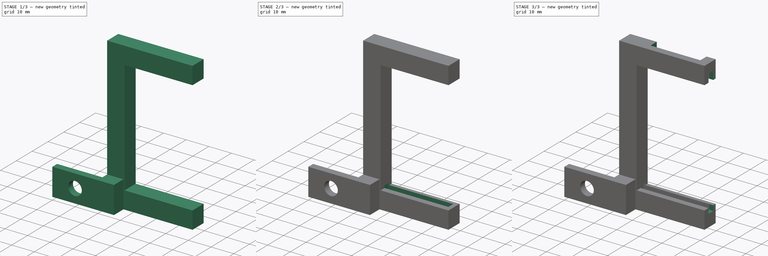
[diagram: build sequence overview — one tinted view per stage of 3, left to right]
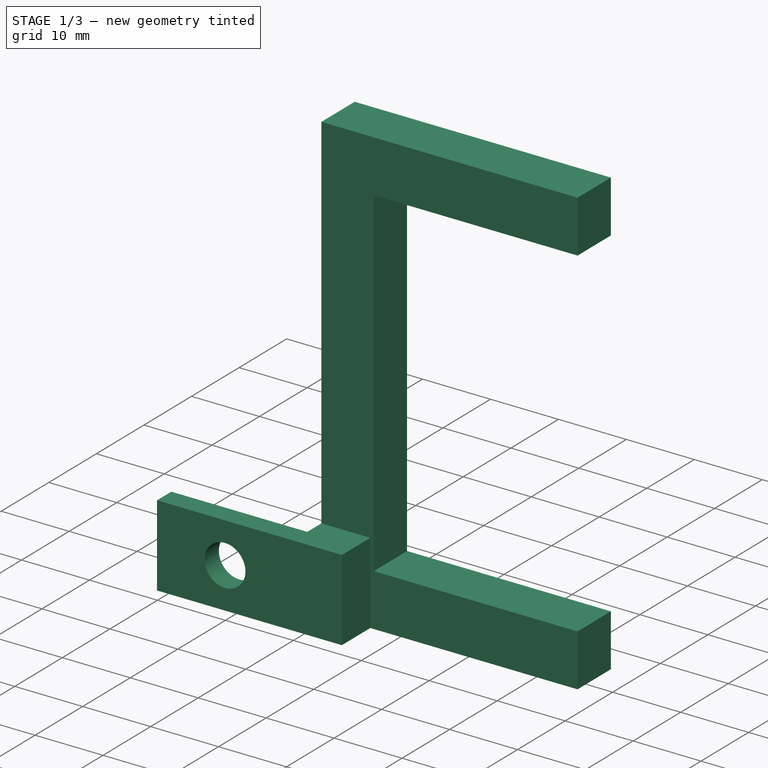
[diagram: stage 1 of 3 — iso view after this stage's code; geometry added in this stage tinted green]
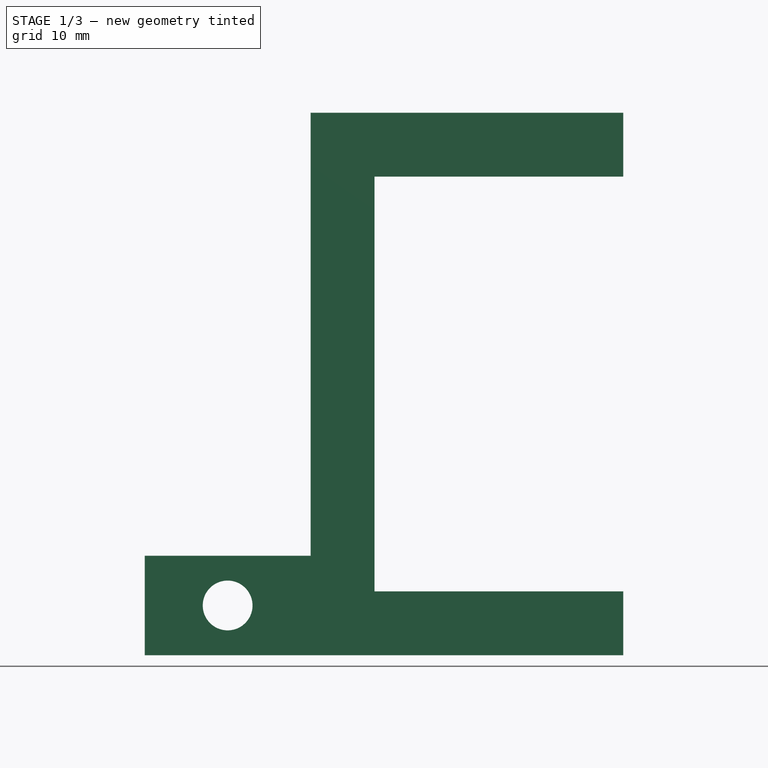
[diagram: stage 1 of 3 — front view after this stage's code; geometry added in this stage tinted green]
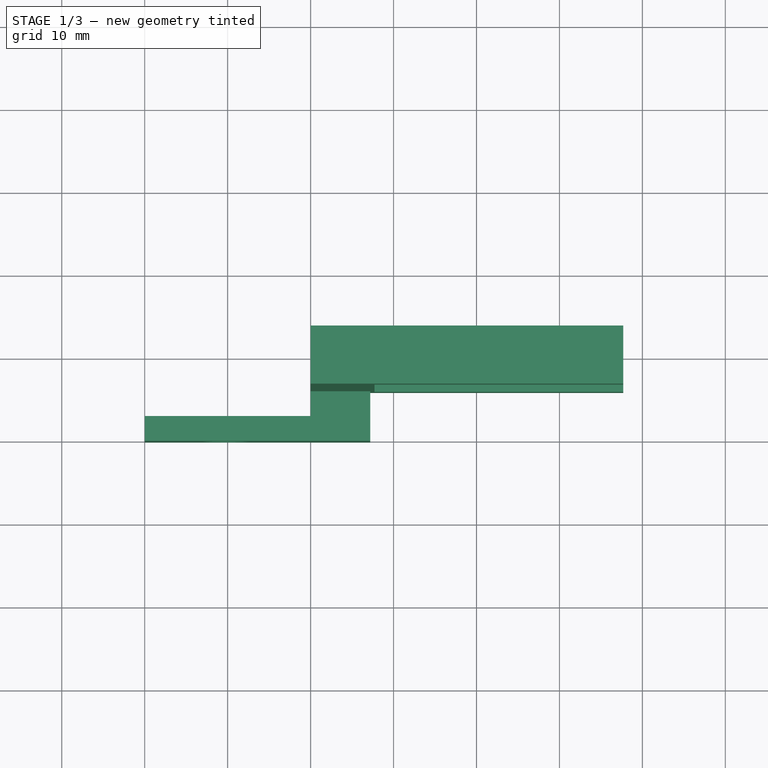
[diagram: stage 1 of 3 — top view after this stage's code; geometry added in this stage tinted green]
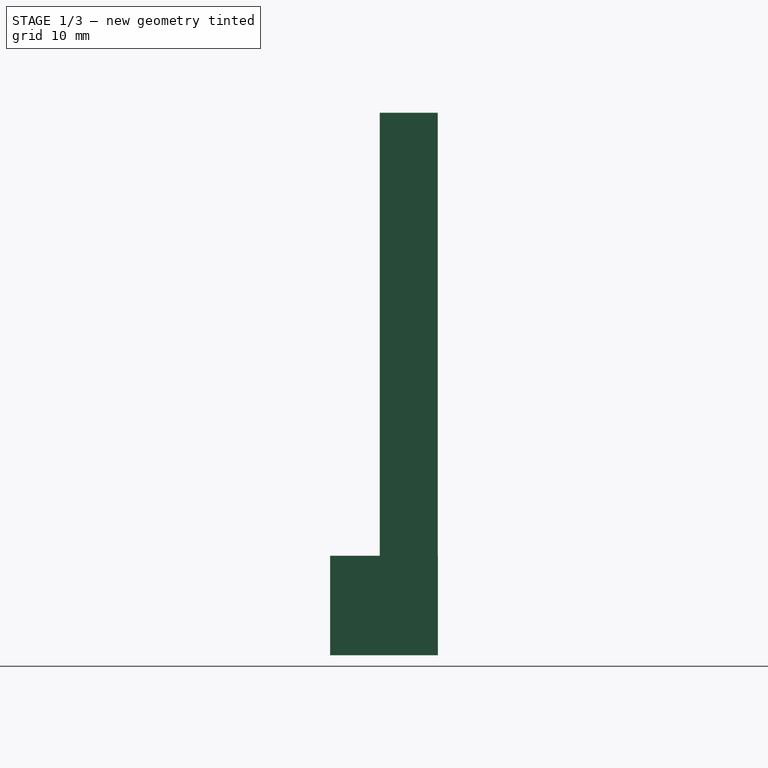
[diagram: stage 1 of 3 — right view after this stage's code; geometry added in this stage tinted green]
FCSTD DOCUMENT  (FreeCAD 1.0R39109 (Git))
Label: SupportMatrix2
License: All rights reserved
LicenseURL: http://en.wikipedia.org/wiki/All_rights_reserved
objects: Sketcher::SketchObject×8, PartDesign::Pocket×5, PartDesign::Pad×2, PartDesign::Hole×1, PartDesign::Body×1
note: 41 computed .brp shape members not serialized (recipe doc carries the construction recipe); baked Part::Feature solids carry a one-line shape summary decoded from their .brp

FEATURE [Sketcher::SketchObject] Sketch
  ArcFitTolerance = 0
  AttachmentSupport = -> [XY_Plane]
  FullyConstrained = false
  MakeInternals = false
  MapMode = 5
  sketch-geometry (6):
    g0: LineSegment StartX=-20 StartY=-10.081 StartZ=0 EndX=7.2 EndY=-10.081 EndZ=0
    g1: LineSegment StartX=7.2 StartY=-10.081 StartZ=0 EndX=7.2 EndY=2.91895 EndZ=0
    g2: LineSegment StartX=7.2 StartY=2.91895 StartZ=0 EndX=0 EndY=2.91895 EndZ=0
    g3: LineSegment StartX=0 StartY=2.91895 StartZ=0 EndX=0 EndY=-7.08105 EndZ=0
    g4: LineSegment StartX=0 StartY=-7.08105 StartZ=0 EndX=-20 EndY=-7.08105 EndZ=0
    g5: LineSegment StartX=-20 StartY=-7.08105 StartZ=0 EndX=-20 EndY=-10.081 EndZ=0
  constraints (17):
    c: Horizontal(g0)
    c: Coincident(g0,g1)
    c: Vertical(g1)
    c: Coincident(g1,g2)
    c: Horizontal(g2)
    c: Coincident(g2,g3)
    c: Vertical(g3)
    c: Coincident(g3,g4)
    c: Horizontal(g4)
    c: Coincident(g4,g5)
    c: Coincident(g5,g0)
    c: Vertical(g5)
    c: DistanceX(g4,g4) = 20
    c: DistanceY(g3,g3) = 10
    c: DistanceY(g5,g5) = 3
    c: DistanceX(g2,g2) = 7.2
    c: PointOnObject(g3,g-2)
FEATURE [PartDesign::Pad] Pad
  AllowMultiFace = false
  Direction = (0,0,1)
  Length = 12
  Length2 = 100
  Profile = -> Sketch
  Suppressed = false
  Type = 0
FEATURE [Sketcher::SketchObject] Sketch001
  ArcFitTolerance = 0
  AttachmentSupport = -> [Pad]
  ExternalGeometry = -> [Sketch]
  FullyConstrained = false
  MakeInternals = false
  MapMode = 5
  Placement = pos=(0,-10.081,0) rot=(1,0,0;1.5708rad)
  sketch-geometry (3):
    g0: Circle CenterX=-10 CenterY=6 CenterZ=0 NormalX=0 NormalY=0 NormalZ=1 AngleXU=0 Radius=1.75
    g1: LineSegment [constr] StartX=0 StartY=13.5632 StartZ=0 EndX=0 EndY=-1.69351 EndZ=0
    g2: LineSegment [constr] StartX=-14.5259 StartY=0 StartZ=0 EndX=-7.5133 EndY=0 EndZ=0
  constraints (2):
    c: Diameter(g0) = 3.5
    c: Distance(g0,g2) = 6
FEATURE [PartDesign::Hole] Hole
  AllowMultiFace = false
  BaseFeature = -> Pad
  CustomThreadClearance = 0
  Depth = 25
  DepthType = 1
  Diameter = 6
  DrillForDepth = false
  DrillPoint = 1
  DrillPointAngle = 118
  HoleCutCountersinkAngle = 90
  HoleCutCustomValues = false
  HoleCutDepth = 0
  HoleCutDiameter = 0
  HoleCutType = 0
  ModelThread = false
  Profile = -> Sketch001
  Suppressed = false
  Tapered = false
  TaperedAngle = 90
  ThreadClass = 0
  ThreadDepth = 23.5
  ThreadDepthType = 0
  ThreadDirection = 0
  ThreadFit = 0
  ThreadSize = 0
  ThreadType = 0
  Threaded = false
  UseCustomThreadClearance = false
FEATURE [Sketcher::SketchObject] Sketch002
  ArcFitTolerance = 0
  ExternalGeometry = -> [Sketch]
  FullyConstrained = false
  MakeInternals = false
  MapMode = 5
  Placement = pos=(0,2.9,0) rot=(1,0,0;1.5708rad)
  sketch-geometry (9):
    g0: LineSegment StartX=37.7 StartY=7.7 StartZ=0 EndX=37.7 EndY=0 EndZ=0
    g1: LineSegment StartX=37.7 StartY=0 StartZ=0 EndX=0 EndY=0 EndZ=0
    g2: LineSegment StartX=0 StartY=0 StartZ=0 EndX=0 EndY=11.9912 EndZ=0
    g3: LineSegment StartX=0 StartY=11.9912 StartZ=0 EndX=0 EndY=65.4 EndZ=0
    g4: LineSegment StartX=0 StartY=65.4 StartZ=0 EndX=37.7 EndY=65.4 EndZ=0
    g5: LineSegment StartX=7.7 StartY=57.7 StartZ=0 EndX=7.7 EndY=7.7 EndZ=0
    g6: LineSegment StartX=7.7 StartY=7.7 StartZ=0 EndX=37.7 EndY=7.7 EndZ=0
    g7: LineSegment StartX=37.7 StartY=65.4 StartZ=0 EndX=37.7 EndY=57.7 EndZ=0
    g8: LineSegment StartX=7.7 StartY=57.7 StartZ=0 EndX=37.7 EndY=57.7 EndZ=0
  constraints (25):
    c: Vertical(g3)
    c: Vertical(g2)
    c: Coincident(g3,g4)
    c: Horizontal(g4)
    c: Horizontal(g6)
    c: Vertical(g5)
    c: Coincident(g6,g5)
    c: Coincident(g0,g6)
    c: Vertical(g0)
    c: DistanceX(g6,g6) = 30
    c: DistanceY(g5,g5) = 50
    c: Coincident(g2,g-1)
    c: Coincident(g1,g0)
    c: DistanceY(g0,g0) = 7.7
    c: Horizontal(g1)
    c: Coincident(g1,g-1)
    c: Coincident(g4,g7)
    c: Vertical(g7)
    c: DistanceX(g1,g5) = 7.7
    c: DistanceX(g5,g7) = 30
    c: Coincident(g3,g2)
    c: Coincident(g8,g5)
    c: Coincident(g8,g7)
    c: Horizontal(g8)
    c: DistanceY(g7,g4) = 7.7
FEATURE [PartDesign::Pad] Pad001
  AllowMultiFace = false
  BaseFeature = -> Hole
  Direction = (0,-1,0)
  Length = 7
  Length2 = 100
  Profile = -> Sketch002
  Suppressed = false
  Type = 0
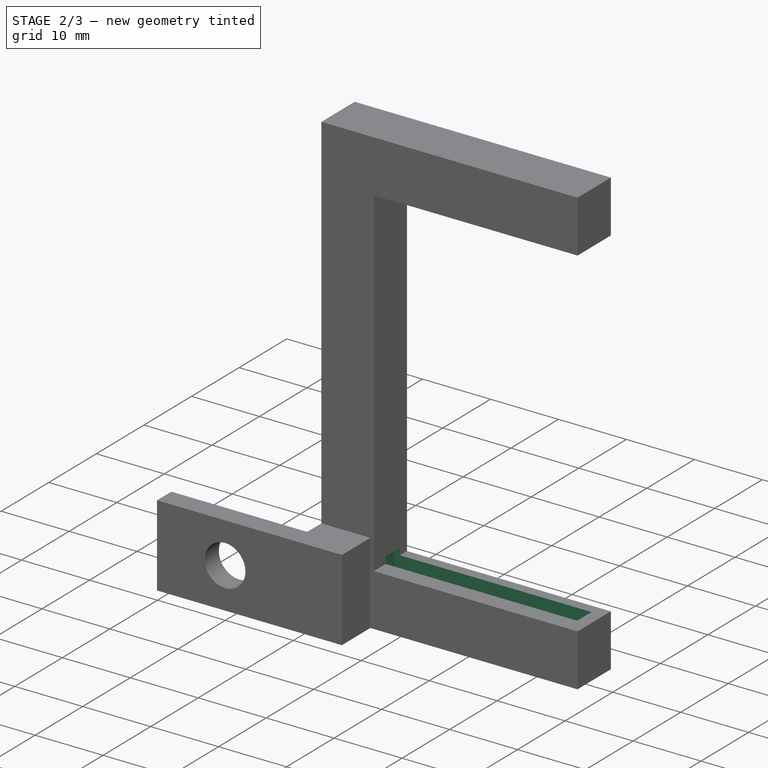
[diagram: stage 2 of 3 — iso view after this stage's code; geometry added in this stage tinted green]
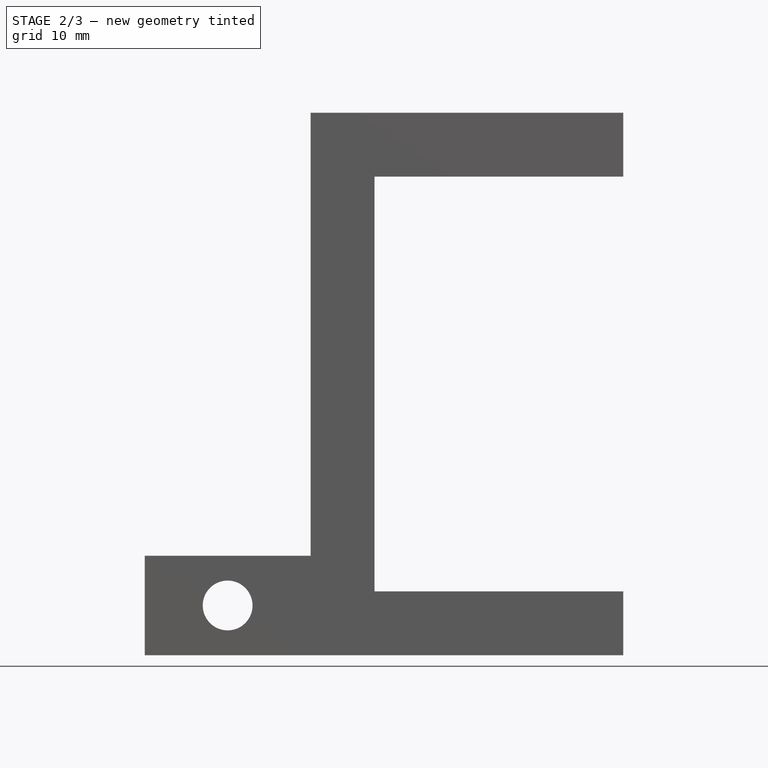
[diagram: stage 2 of 3 — front view after this stage's code; geometry added in this stage tinted green]
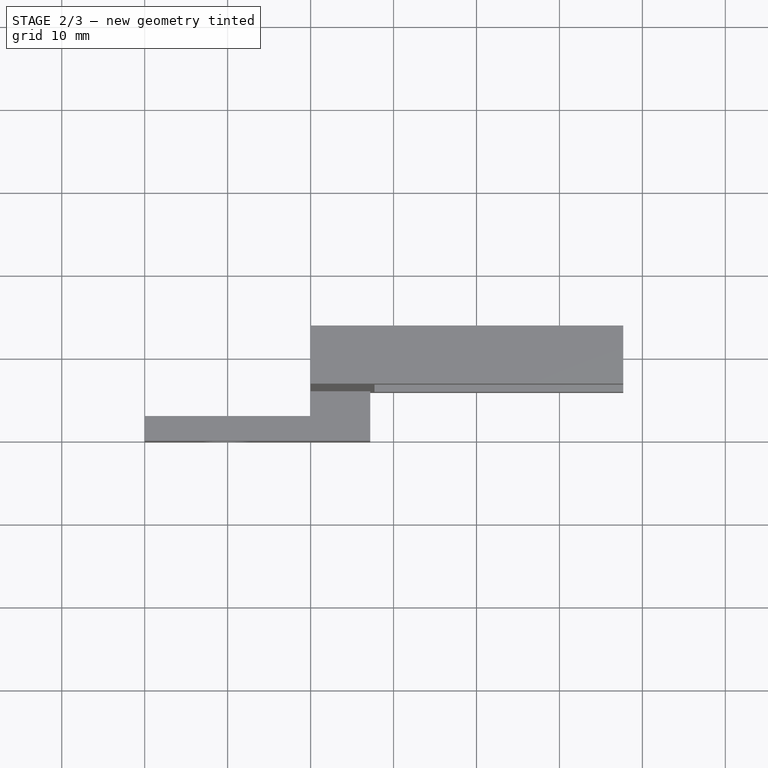
[diagram: stage 2 of 3 — top view after this stage's code; geometry added in this stage tinted green]
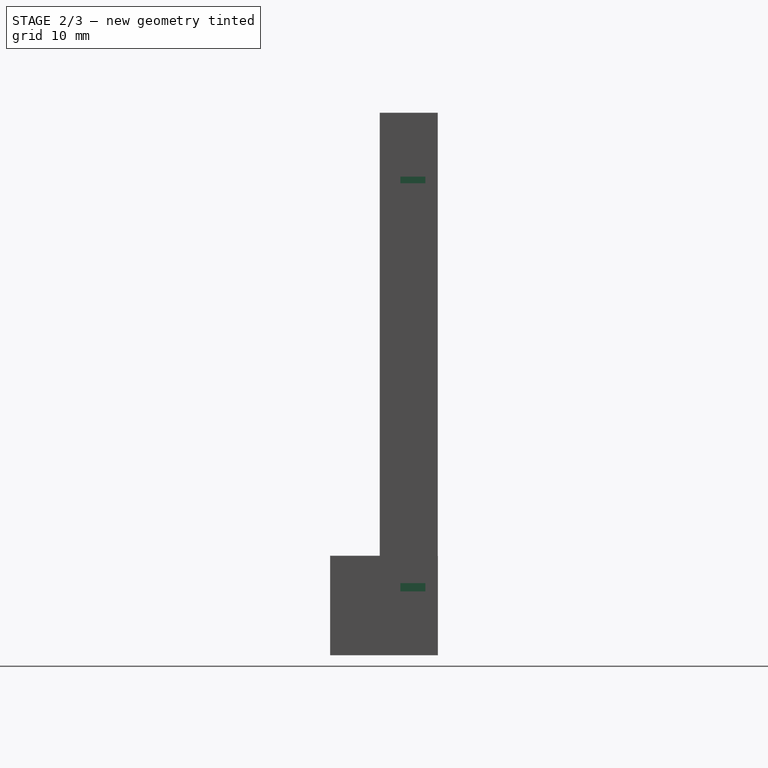
[diagram: stage 2 of 3 — right view after this stage's code; geometry added in this stage tinted green]
FEATURE [Sketcher::SketchObject] Sketch003
  ArcFitTolerance = 0
  AttachmentOffset = pos=(0,-6,55) rot=(0,0,1;0rad)
  AttachmentSupport = -> [Pad001]
  ExternalGeometry = -> [Sketch002,Pad001]
  FullyConstrained = false
  MakeInternals = false
  MapMode = 5
  Placement = pos=(0,6,2.7) rot=(1,0,0;3.14159rad)
  sketch-geometry (4):
    g0: LineSegment StartX=35.8997 StartY=4.6 StartZ=0 EndX=6.89969 EndY=4.6 EndZ=0
    g1: LineSegment StartX=6.89969 StartY=4.6 StartZ=0 EndX=6.89969 EndY=7.6 EndZ=0
    g2: LineSegment StartX=6.89969 StartY=7.6 StartZ=0 EndX=35.8997 EndY=7.6 EndZ=0
    g3: LineSegment StartX=35.8997 StartY=7.6 StartZ=0 EndX=35.8997 EndY=4.6 EndZ=0
  constraints (11):
    c: Coincident(g0,g1)
    c: Coincident(g1,g2)
    c: Coincident(g2,g3)
    c: Coincident(g3,g0)
    c: Horizontal(g0)
    c: Horizontal(g2)
    c: Vertical(g1)
    c: Vertical(g3)
    c: DistanceY(g1,g1) = 3
    c: DistanceY(g1,g-6) = 2.5
    c: DistanceX(g0,g0) = 29
FEATURE [PartDesign::Pocket] Pocket
  AllowMultiFace = false
  BaseFeature = -> Pad001
  Direction = (0,0,1)
  Length = 6
  Length2 = 100
  Profile = -> Sketch003
  ReferenceAxis = -> Sketch003 [N_Axis]
  Suppressed = false
  Type = 0
FEATURE [Sketcher::SketchObject] Sketch004
  ArcFitTolerance = 0
  AttachmentOffset = pos=(54,-65,-2.5) rot=(0,0,1;0rad)
  AttachmentSupport = -> [Pocket]
  ExternalGeometry = -> [Pocket,Sketch002]
  FullyConstrained = false
  MakeInternals = false
  MapMode = 5
  Placement = pos=(54,-65,62.9) rot=(0,0,1;0rad)
  sketch-geometry (4):
    g0: LineSegment StartX=-47.1214 StartY=66.4 StartZ=0 EndX=-18.1214 EndY=66.4 EndZ=0
    g1: LineSegment StartX=-18.1214 StartY=66.4 StartZ=0 EndX=-18.1214 EndY=63.4 EndZ=0
    g2: LineSegment StartX=-18.1214 StartY=63.4 StartZ=0 EndX=-47.1214 EndY=63.4 EndZ=0
    g3: LineSegment StartX=-47.1214 StartY=63.4 StartZ=0 EndX=-47.1214 EndY=66.4 EndZ=0
  constraints (11):
    c: Coincident(g0,g1)
    c: Coincident(g1,g2)
    c: Coincident(g2,g3)
    c: Coincident(g3,g0)
    c: Horizontal(g0)
    c: Horizontal(g2)
    c: Vertical(g1)
    c: Vertical(g3)
    c: DistanceY(g1,g1) = 3
    c: DistanceX(g2,g2) = 29
    c: DistanceY(g-6,g2) = 2.5
FEATURE [PartDesign::Pocket] Pocket001
  AllowMultiFace = false
  BaseFeature = -> Pocket
  Direction = (0,0,-1)
  Length = 6
  Length2 = 100
  Profile = -> Sketch004
  ReferenceAxis = -> Sketch004 [N_Axis]
  Suppressed = false
  Type = 0
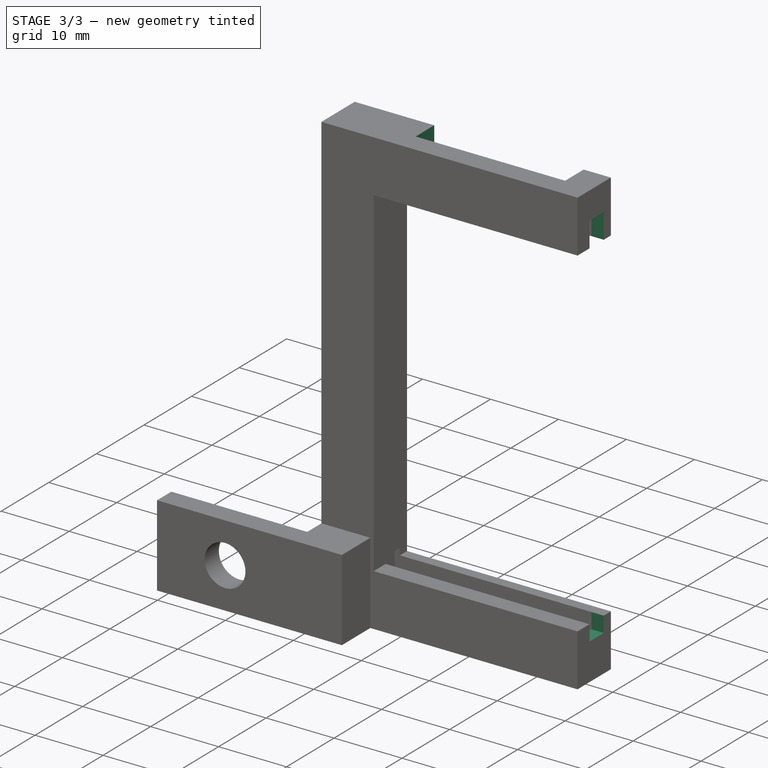
[diagram: stage 3 of 3 — iso view after this stage's code; geometry added in this stage tinted green]
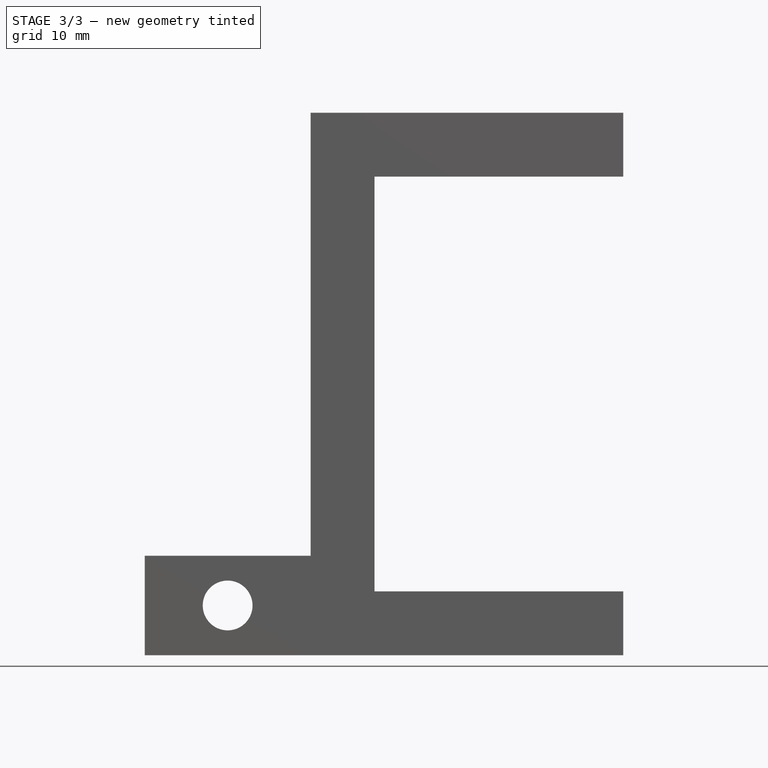
[diagram: stage 3 of 3 — front view after this stage's code; geometry added in this stage tinted green]
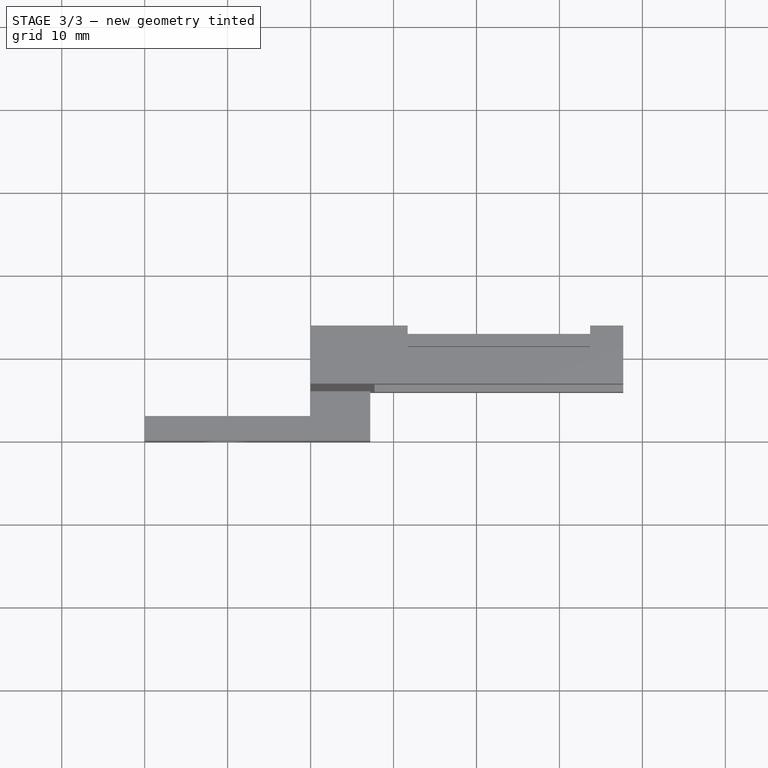
[diagram: stage 3 of 3 — top view after this stage's code; geometry added in this stage tinted green]
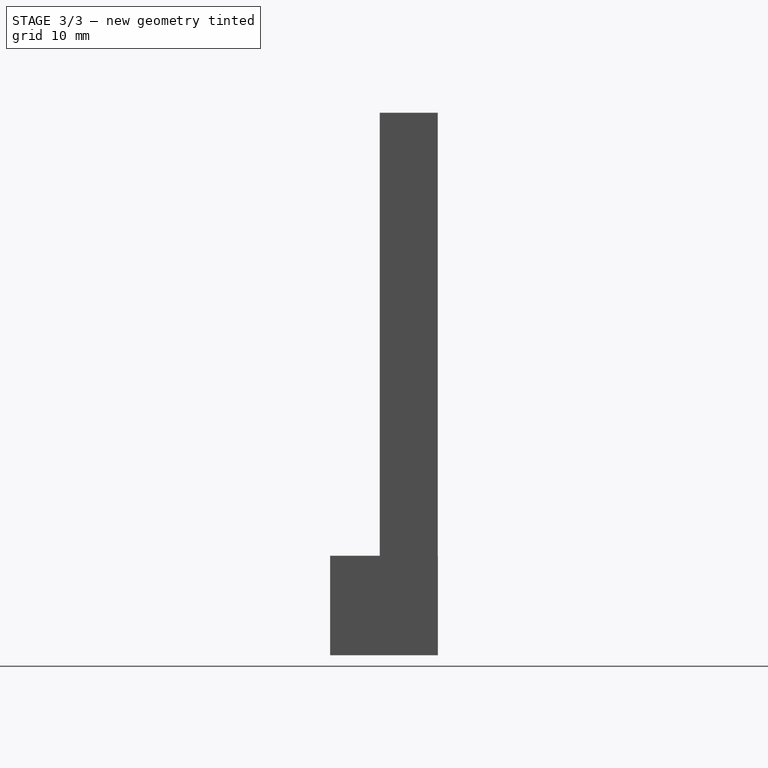
[diagram: stage 3 of 3 — right view after this stage's code; geometry added in this stage tinted green]
FEATURE [Sketcher::SketchObject] Sketch005
  ArcFitTolerance = 0
  AttachmentOffset = pos=(0,0,1) rot=(0,0,1;0rad)
  AttachmentSupport = -> [XZ_Plane]
  ExternalGeometry = -> [Pocket001]
  FullyConstrained = false
  MakeInternals = false
  MapMode = 5
  Placement = pos=(0,-1,-1.035e-13) rot=(1,0,0;1.5708rad)
  sketch-geometry (4):
    g0: LineSegment StartX=11.7 StartY=67.5756 StartZ=0 EndX=33.7 EndY=67.5756 EndZ=0
    g1: LineSegment StartX=33.7 StartY=67.5756 StartZ=0 EndX=33.7 EndY=56.6175 EndZ=0
    g2: LineSegment StartX=33.7 StartY=56.6175 StartZ=0 EndX=11.7 EndY=56.6175 EndZ=0
    g3: LineSegment StartX=11.7 StartY=56.6175 StartZ=0 EndX=11.7 EndY=67.5756 EndZ=0
  constraints (10):
    c: Coincident(g0,g1)
    c: Coincident(g1,g2)
    c: Coincident(g2,g3)
    c: Coincident(g3,g0)
    c: Horizontal(g0)
    c: Horizontal(g2)
    c: Vertical(g1)
    c: Vertical(g3)
    c: DistanceX(g-3,g2) = 4
    c: DistanceX(g1,g-4) = 4
FEATURE [PartDesign::Pocket] Pocket002
  BaseFeature = -> Pocket001
  Direction = (0,1,1.035e-13)
  Length = 6
  Length2 = 5
  Profile = -> Sketch005
  ReferenceAxis = -> Sketch005 [N_Axis]
  Suppressed = false
  Type = 0
FEATURE [Sketcher::SketchObject] Sketch006
  ArcFitTolerance = 1e-06
  AttachmentOffset = pos=(0,0,5.4) rot=(0,0,1;0rad)
  AttachmentSupport = -> [XY_Plane]
  ExternalGeometry = -> [Sketch004,Sketch002]
  FullyConstrained = false
  MakeInternals = false
  MapMode = 5
  Placement = pos=(0,0,5.4) rot=(0,0,1;0rad)
  sketch-geometry (4):
    g0: LineSegment StartX=37.7 StartY=1.4 StartZ=0 EndX=35.8786 EndY=1.4 EndZ=0
    g1: LineSegment StartX=35.8786 StartY=1.4 StartZ=0 EndX=35.8786 EndY=-1.6 EndZ=0
    g2: LineSegment StartX=35.8786 StartY=-1.6 StartZ=0 EndX=37.7 EndY=-1.6 EndZ=0
    g3: LineSegment StartX=37.7 StartY=-1.6 StartZ=0 EndX=37.7 EndY=1.4 EndZ=0
  constraints (10):
    c: Coincident(g0,g1)
    c: Coincident(g1,g2)
    c: Coincident(g2,g3)
    c: Coincident(g3,g0)
    c: Horizontal(g0)
    c: Horizontal(g2)
    c: Vertical(g1)
    c: Vertical(g3)
    c: Coincident(g0,g-3)
    c: Equal(g3,g-5)
FEATURE [PartDesign::Pocket] Pocket003
  BaseFeature = -> Pocket002
  Direction = (0,0,-1)
  Length = 5
  Length2 = 5
  Profile = -> Sketch006
  ReferenceAxis = -> Sketch006 [N_Axis]
  Reversed = true
  Suppressed = false
  Type = 0
FEATURE [Sketcher::SketchObject] Sketch007
  ArcFitTolerance = 1e-06
  AttachmentOffset = pos=(0,0,61.4) rot=(0,0,1;0rad)
  AttachmentSupport = -> [XY_Plane]
  ExternalGeometry = -> [Sketch006,Sketch004]
  FullyConstrained = true
  MakeInternals = false
  MapMode = 5
  Placement = pos=(0,0,61.4) rot=(0,0,1;0rad)
  sketch-geometry (4):
    g0: LineSegment StartX=35.8786 StartY=1.4 StartZ=0 EndX=35.8786 EndY=-1.6 EndZ=0
    g1: LineSegment StartX=35.8786 StartY=-1.6 StartZ=0 EndX=37.7 EndY=-1.6 EndZ=0
    g2: LineSegment StartX=37.7 StartY=-1.6 StartZ=0 EndX=37.7 EndY=1.4 EndZ=0
    g3: LineSegment StartX=37.7 StartY=1.4 StartZ=0 EndX=35.8786 EndY=1.4 EndZ=0
  constraints (9):
    c: Coincident(g0,g1)
    c: Coincident(g1,g2)
    c: Coincident(g2,g3)
    c: Coincident(g3,g0)
    c: Vertical(g0)
    c: Horizontal(g3)
    c: Coincident(g0,g-4)
    c: Coincident(g-3,g1)
    c: Coincident(g-3,g2)
FEATURE [PartDesign::Pocket] Pocket004
  BaseFeature = -> Pocket003
  Direction = (0,0,-1)
  Length = 5
  Length2 = 5
  Profile = -> Sketch007
  ReferenceAxis = -> Sketch007 [N_Axis]
  Suppressed = false
  Type = 0
FEATURE [PartDesign::Body] Body
  AllowCompound = false
  Group = -> [Sketch,Pad,Sketch001,Hole,Sketch002,Pad001,Sketch003,Pocket,Sketch004,Pocket001,Sketch005,Pocket002,Sketch006,Pocket003,Sketch007,Pocket004]
  Origin = -> Origin
  Tip = -> Pocket004
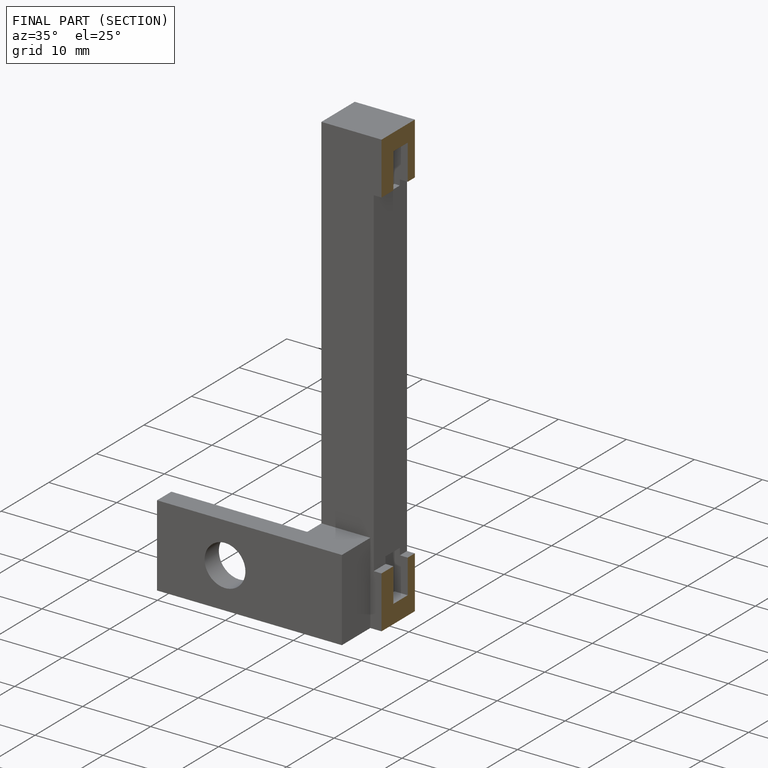
[diagram: finished part — half-section view (interior)]
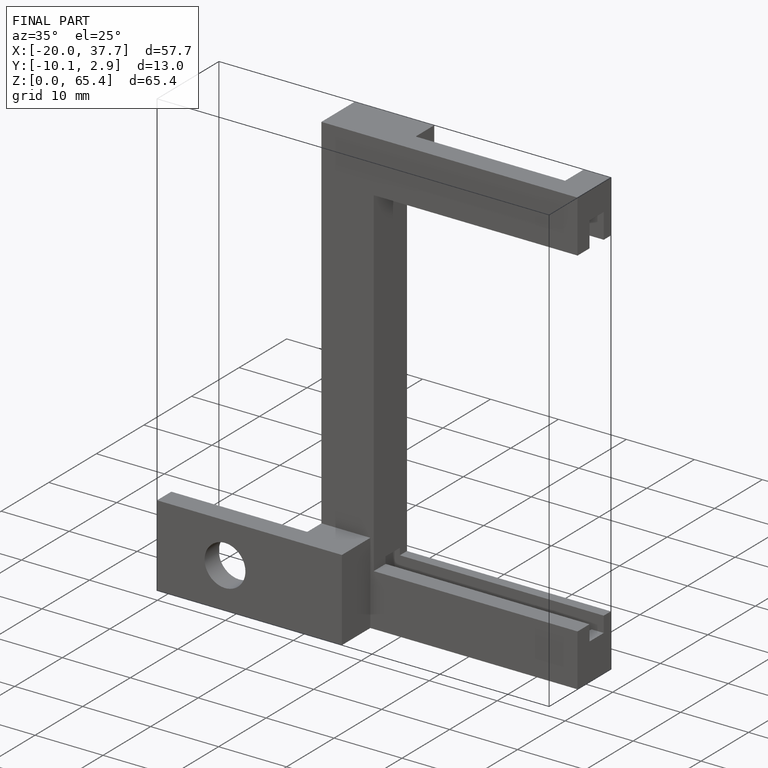
[diagram: finished part — iso view with bounding-box wireframe]
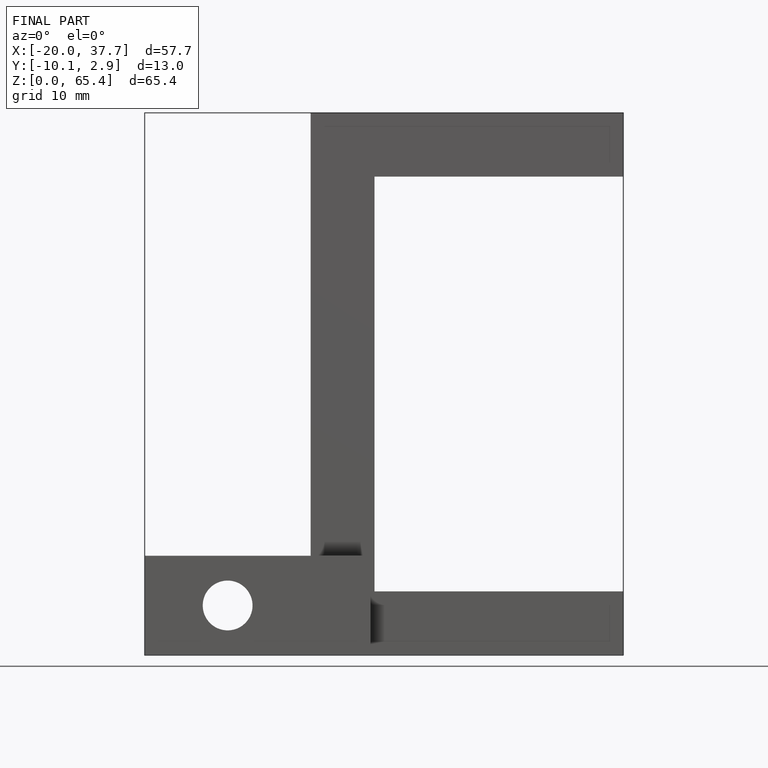
[diagram: finished part — front view with bounding-box wireframe]
